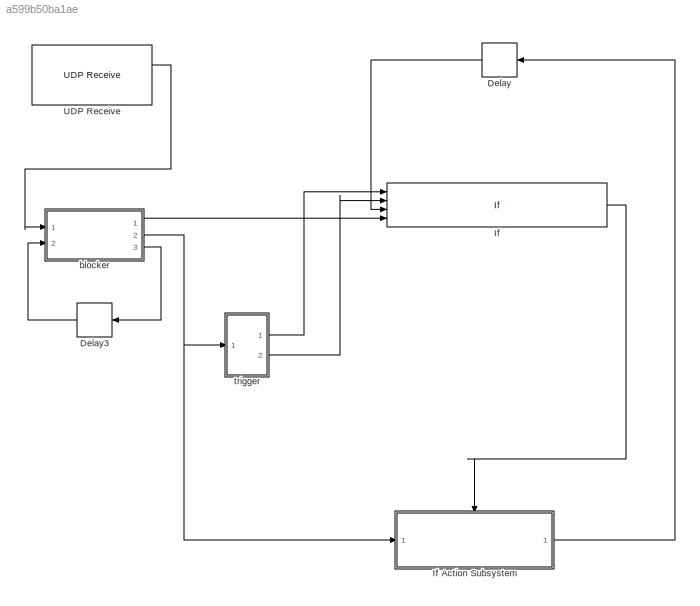
MODEL slx_a599b50ba1ae
KIND model
CONFIG AbsTol = auto
CONFIG EnableMultiTasking = on
CONFIG FixedStep = 1e-4
CONFIG MaxStep = auto
CONFIG MinStep = auto
CONFIG RelTol = 1e-3
CONFIG SampleTimeConstraint = Unconstrained
CONFIG SolverName = FixedStepDiscrete
CONFIG StartTime = 0.0
CONFIG StopTime = inf
BLOCK [Delay] Delay
  DelayLength = 1
  InitialCondition = 0
  InputPortMap = u0
  Ports = [1, 1]
BLOCK [Delay] Delay3
  DelayLength = 1
  InitialCondition = 0
  InputPortMap = u0
  Ports = [1, 1]
BLOCK [If] If
  IfExpression = (u1 == 0 & u2 ~=0& u4~=0) | (u3 > 1& u4~=0)
  NumInputs = 4
  Ports = [4, 1]
  ShowElse = off
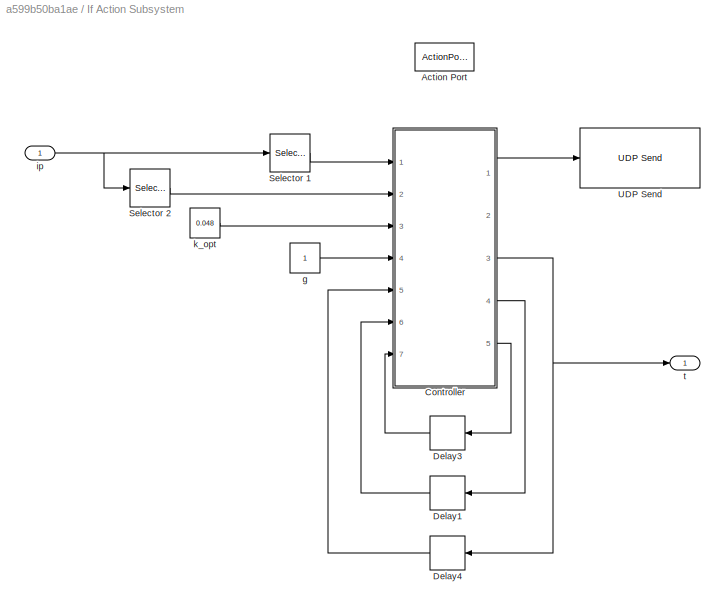
BLOCK [SubSystem] If Action Subsystem 
  Ports = [1, 1, 0, 0, 0, 0, 0, 1]
  RequestExecContextInheritance = off
  TreatAsAtomicUnit = on
BLOCK [ActionPort] If Action Subsystem /Action Port
  ActionPortLabel = if((u1 == 0 & u2 ~=0& u4~=0) | (u3 > 1& u4~=0))
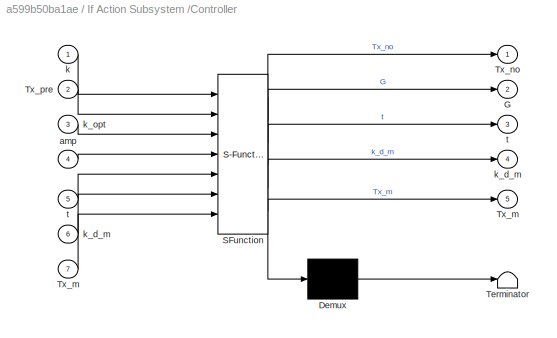
BLOCK [SubSystem] If Action Subsystem /Controller
  ErrorFcn = Stateflow.Translate.translate
  PermitHierarchicalResolution = ExplicitOnly
  Ports = [7, 5]
  RequestExecContextInheritance = off
  SFBlockType = MATLAB Function
  TreatAsAtomicUnit = on
BLOCK [Demux] If Action Subsystem /Controller/ Demux 
  Outputs = 1
  Ports = [1, 1]
BLOCK [S-Function] If Action Subsystem /Controller/ SFunction 
  EnableBusSupport = on
  FunctionName = sf_sfun
  PortCounts = [7 6]
  Ports = [7, 6]
  SFcnIsStateOwnerBlock = off
  SFunctionDeploymentMode = off
  Tag = Stateflow S-Function 8
BLOCK [Terminator] If Action Subsystem /Controller/ Terminator 
BLOCK [Outport] If Action Subsystem /Controller/G
  Port = 2
BLOCK [Outport] If Action Subsystem /Controller/Tx_m
  Port = 5
BLOCK [Inport] If Action Subsystem /Controller/Tx_m 
  Port = 7
BLOCK [Outport] If Action Subsystem /Controller/Tx_no
BLOCK [Inport] If Action Subsystem /Controller/Tx_pre
  Port = 2
BLOCK [Inport] If Action Subsystem /Controller/amp
  Port = 4
BLOCK [Inport] If Action Subsystem /Controller/k
BLOCK [Outport] If Action Subsystem /Controller/k_d_m
  Port = 4
BLOCK [Inport] If Action Subsystem /Controller/k_d_m 
  Port = 6
BLOCK [Inport] If Action Subsystem /Controller/k_opt
  Port = 3
BLOCK [Outport] If Action Subsystem /Controller/t
  Port = 3
BLOCK [Inport] If Action Subsystem /Controller/t 
  Port = 5
BLOCK [Delay] If Action Subsystem /Delay1
  DelayLength = 1
  InitialCondition = zeros(2,3)
  InputPortMap = u0
  Ports = [1, 1]
BLOCK [Delay] If Action Subsystem /Delay3
  DelayLength = 1
  InitialCondition = zeros(8,2)
  InputPortMap = u0
  Ports = [1, 1]
BLOCK [Delay] If Action Subsystem /Delay4
  DelayLength = 1
  InitialCondition = 0
  InputPortMap = u0
  Ports = [1, 1]
BLOCK [Selector] If Action Subsystem /Selector 1
  IndexOptions = Index vector (dialog)
  Indices = 1
  InputPortWidth = 4
  OutputSizes = 1
  Ports = [1, 1]
BLOCK [Selector] If Action Subsystem /Selector 2
  IndexOptions = Index vector (dialog)
  Indices = [3;4]
  InputPortWidth = 4
  OutputSizes = 1
  Ports = [1, 1]
BLOCK [Reference] If Action Subsystem /UDP Send   REF=raspberrypiNetworklib/UDP Send
  Ports = [1]
  SourceBlock = raspberrypiNetworklib/UDP Send
  SourceProductBaseCode = RASPPI
  SourceType = UDP Send
BLOCK [Constant] If Action Subsystem /g
BLOCK [Inport] If Action Subsystem /ip
BLOCK [Constant] If Action Subsystem /k_opt
  Value = 0.048
BLOCK [Outport] If Action Subsystem /t
BLOCK [Reference] UDP Receive   REF=raspberrypiNetworklib/UDP Receive
  Ports = [0, 2]
  SourceBlock = raspberrypiNetworklib/UDP Receive
  SourceProductBaseCode = RASPPI
  SourceType = UDP Receive
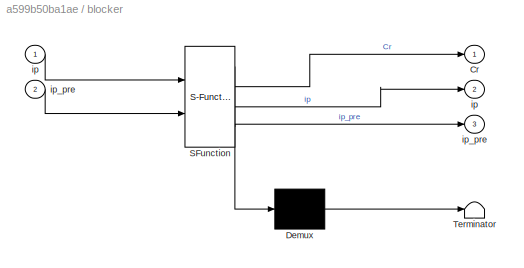
BLOCK [SubSystem] blocker
  ErrorFcn = Stateflow.Translate.translate
  PermitHierarchicalResolution = ExplicitOnly
  Ports = [2, 3]
  RequestExecContextInheritance = off
  SFBlockType = MATLAB Function
  TreatAsAtomicUnit = on
BLOCK [Demux] blocker/ Demux 
  Outputs = 1
  Ports = [1, 1]
BLOCK [S-Function] blocker/ SFunction 
  EnableBusSupport = on
  FunctionName = sf_sfun
  PortCounts = [2 4]
  Ports = [2, 4]
  SFcnIsStateOwnerBlock = off
  SFunctionDeploymentMode = off
  Tag = Stateflow S-Function 1
BLOCK [Terminator] blocker/ Terminator 
BLOCK [Outport] blocker/Cr
BLOCK [Outport] blocker/ip
  Port = 2
BLOCK [Inport] blocker/ip 
BLOCK [Outport] blocker/ip_pre
  Port = 3
BLOCK [Inport] blocker/ip_pre 
  Port = 2
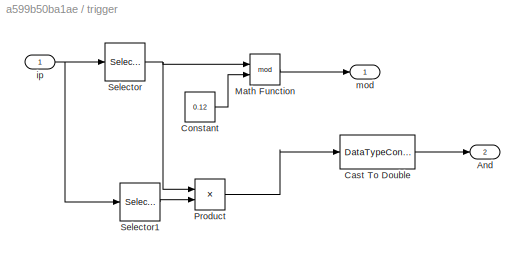
BLOCK [SubSystem] trigger
  Ports = [1, 2]
  RequestExecContextInheritance = off
BLOCK [Outport] trigger/And
  Port = 2
BLOCK [DataTypeConversion] trigger/Cast To Double
  OutDataTypeStr = double
  RndMeth = Floor
  SaturateOnIntegerOverflow = off
BLOCK [Constant] trigger/Constant
  Value = 0.12
BLOCK [Math] trigger/Math Function
  Operator = mod
  Ports = [2, 1]
BLOCK [Product] trigger/Product
  Ports = [2, 1]
BLOCK [Selector] trigger/Selector
  IndexOptions = Index vector (dialog)
  Indices = 2
  InputPortWidth = 4
  OutputSizes = 1
  Ports = [1, 1]
BLOCK [Selector] trigger/Selector1
  IndexOptions = Index vector (dialog)
  Indices = 1
  InputPortWidth = 4
  OutputSizes = 1
  Ports = [1, 1]
BLOCK [Inport] trigger/ip
BLOCK [Outport] trigger/mod
LINE Delay3:1 -> blocker:2
LINE Delay:1 -> If:3
LINE If Action Subsystem /Controller:1 -> If Action Subsystem /UDP Send :1
NET If Action Subsystem /Controller:3 -> If Action Subsystem /Delay4:1, If Action Subsystem /t:1
LINE If Action Subsystem /Controller:4 -> If Action Subsystem /Delay1:1
LINE If Action Subsystem /Controller:5 -> If Action Subsystem /Delay3:1
LINE If Action Subsystem /Delay1:1 -> If Action Subsystem /Controller:6
LINE If Action Subsystem /Delay3:1 -> If Action Subsystem /Controller:7
LINE If Action Subsystem /Delay4:1 -> If Action Subsystem /Controller:5
LINE If Action Subsystem /Selector 1:1 -> If Action Subsystem /Controller:1
LINE If Action Subsystem /Selector 2:1 -> If Action Subsystem /Controller:2
LINE If Action Subsystem /g:1 -> If Action Subsystem /Controller:4
NET If Action Subsystem /ip:1 -> If Action Subsystem /Selector 1:1, If Action Subsystem /Selector 2:1
LINE If Action Subsystem /k_opt:1 -> If Action Subsystem /Controller:3
LINE If Action Subsystem :1 -> Delay:1
LINE If:1 -> If Action Subsystem :ifaction
LINE UDP Receive :1 -> blocker:1
LINE blocker:1 -> If:4
NET blocker:2 -> If Action Subsystem :1, trigger:1
LINE blocker:3 -> Delay3:1
LINE trigger/Cast To Double:1 -> trigger/And:1
LINE trigger/Constant:1 -> trigger/Math Function:2
LINE trigger/Math Function:1 -> trigger/mod:1
LINE trigger/Product:1 -> trigger/Cast To Double:1
LINE trigger/Selector1:1 -> trigger/Product:2
NET trigger/Selector:1 -> trigger/Math Function:1, trigger/Product:1
NET trigger/ip:1 -> trigger/Selector1:1, trigger/Selector:1
LINE trigger:1 -> If:1
LINE trigger:2 -> If:2
note: NET lines group one-source signal fan-out (src -> all destinations, sorted); 1:1 wires keep LINE
CHART blocker states=1 transitions=1
  STATE_LABEL 'eML_blk_kernel()'
  STATE_LABEL 'SCRIPT:\nfunction [Cr,ip, ip_pre] = block(ip, ip_pre)\n\nip2 = ip(2);\n\nif ip2 == ip_pre\n    Cr = 0;\nelse\n    ip_pre = ip2;\n    Cr = 1;\n\nend\n\n\n\n'
CHART If Action
Subsystem /Controller states=1 transitions=1
  STATE_LABEL 'eML_blk_kernel()'
  STATE_LABEL "SCRIPT:\nfunction [Tx_no,G,t,k_d_m,Tx_m] = Controller(k,Tx_pre,k_opt,amp,t,k_d_m,Tx_m)\n\nk_diff = abs(k_opt-k)/k_opt;\nTx_pre = Tx_pre';\n\nif t == 0\n   \n\n    t = t+1;\n    k_d_m(1,:)  = [k_diff,Tx_pre];\n    k_d_m(2,:)  = [k_diff,Tx_pre];\n\n    \nelse\n\n    if k_diff < k_d_m(2,1)\n\n       k_d_m(2,:)  = [k_diff,Tx_pre];\n\n    end\n\nend\n\nG = round(amp*k_d_m(1,1));  \nTx_fix = k_d_m(1,2:3)';\n\nif t < 10\n    if t <...<+307ch>"
CHART  states=0 transitions=0
CHART  states=0 transitions=0
